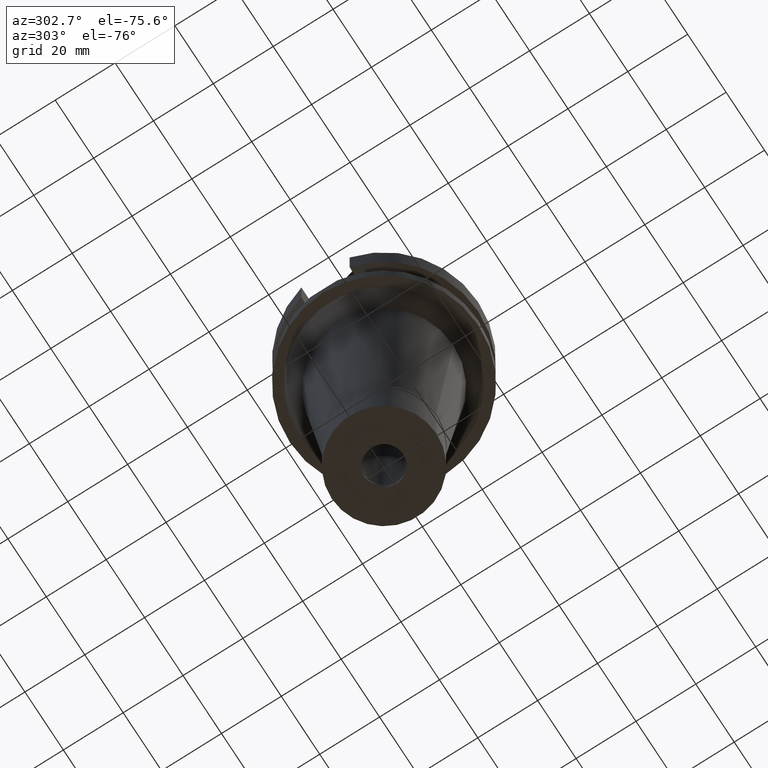
[diagram: clean part render]
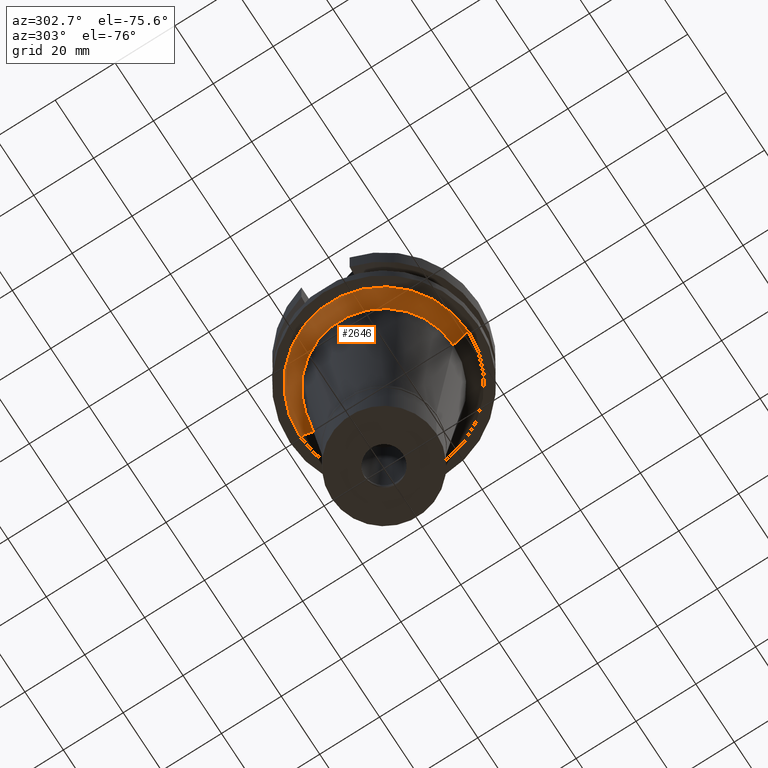
[diagram: same view with one face highlighted and labeled with its STEP entity id]
A machine part, auxiliary view. The second image highlights one B-rep face of the part: STEP entity #2646.
In plain terms, the highlighted conical surface has half-angle 45 deg.
Its self-contained STEP definition (entity closure, byte-faithful):
#20 = DIRECTION ( 'NONE',  ( 0.0000000000000000000, -0.7071067811867980391, -0.7071067811862969954 ) ) ;
#110 = CIRCLE ( 'NONE', #2939, 28.16051653012999978 ) ;
#240 = CARTESIAN_POINT ( 'NONE',  ( 0.0000000000000000000, 0.0000000000000000000, -27.00000000000000000 ) ) ;
#283 = FACE_OUTER_BOUND ( 'NONE', #2637, .T. ) ;
#458 = EDGE_CURVE ( 'NONE', #1438, #1538, #859, .T. ) ;
#709 = EDGE_CURVE ( 'NONE', #1438, #3122, #110, .T. ) ;
#791 = CARTESIAN_POINT ( 'NONE',  ( 0.0000000000000000000, 0.0000000000000000000, -32.00000000000000000 ) ) ;
#859 = LINE ( 'NONE', #1819, #3057 ) ;
#1003 = AXIS2_PLACEMENT_3D ( 'NONE', #791, #2215, #2511 ) ;
#1006 = AXIS2_PLACEMENT_3D ( 'NONE', #2021, #1993, #2669 ) ;
#1035 = ORIENTED_EDGE ( 'NONE', *, *, #2629, .T. ) ;
#1045 = CIRCLE ( 'NONE', #1003, 23.16051653012999623 ) ;
#1116 = VECTOR ( 'NONE', #20, 1000.000000000000000 ) ;
#1438 = VERTEX_POINT ( 'NONE', #1480 ) ;
#1480 = CARTESIAN_POINT ( 'NONE',  ( 0.0000000000000000000, -28.16051653012999978, -27.00000000000000000 ) ) ;
#1538 = VERTEX_POINT ( 'NONE', #2410 ) ;
#1626 = CARTESIAN_POINT ( 'NONE',  ( 0.0000000000000000000, 23.16051653012999623, -32.00000000000000000 ) ) ;
#1665 = DIRECTION ( 'NONE',  ( 0.0000000000000000000, 0.0000000000000000000, -1.000000000000000000 ) ) ;
#1684 = EDGE_CURVE ( 'NONE', #1538, #2951, #1045, .T. ) ;
#1752 = LINE ( 'NONE', #2949, #1116 ) ;
#1819 = CARTESIAN_POINT ( 'NONE',  ( 0.0000000000000000000, -28.16051653012999978, -27.00000000000000000 ) ) ;
#1825 = ORIENTED_EDGE ( 'NONE', *, *, #458, .F. ) ;
#1859 = ORIENTED_EDGE ( 'NONE', *, *, #709, .T. ) ;
#1993 = DIRECTION ( 'NONE',  ( 0.0000000000000000000, 0.0000000000000000000, 1.000000000000000000 ) ) ;
#2021 = CARTESIAN_POINT ( 'NONE',  ( 0.0000000000000000000, 0.0000000000000000000, -29.50000000000000000 ) ) ;
#2126 = CARTESIAN_POINT ( 'NONE',  ( 0.0000000000000000000, 28.16051653012999978, -27.00000000000000000 ) ) ;
#2215 = DIRECTION ( 'NONE',  ( 0.0000000000000000000, 0.0000000000000000000, -1.000000000000000000 ) ) ;
#2410 = CARTESIAN_POINT ( 'NONE',  ( 0.0000000000000000000, -23.16051653012999623, -32.00000000000000000 ) ) ;
#2511 = DIRECTION ( 'NONE',  ( 0.0000000000000000000, -1.000000000000000000, 0.0000000000000000000 ) ) ;
#2629 = EDGE_CURVE ( 'NONE', #3122, #2951, #1752, .T. ) ;
#2631 = CONICAL_SURFACE ( 'NONE', #1006, 25.66051653012999978, 0.7853981633972997312 ) ;
#2637 = EDGE_LOOP ( 'NONE', ( #3112, #1825, #1859, #1035 ) ) ;
#2646 = ADVANCED_FACE ( 'NONE', ( #283 ), #2631, .T. ) ;
#2669 = DIRECTION ( 'NONE',  ( 0.0000000000000000000, 1.000000000000000000, 0.0000000000000000000 ) ) ;
#2778 = DIRECTION ( 'NONE',  ( 0.0000000000000000000, 0.7071067811867980391, -0.7071067811862969954 ) ) ;
#2939 = AXIS2_PLACEMENT_3D ( 'NONE', #240, #1665, #3138 ) ;
#2949 = CARTESIAN_POINT ( 'NONE',  ( 0.0000000000000000000, 28.16051653012999978, -27.00000000000000000 ) ) ;
#2951 = VERTEX_POINT ( 'NONE', #1626 ) ;
#3057 = VECTOR ( 'NONE', #2778, 1000.000000000000000 ) ;
#3112 = ORIENTED_EDGE ( 'NONE', *, *, #1684, .F. ) ;
#3122 = VERTEX_POINT ( 'NONE', #2126 ) ;
#3138 = DIRECTION ( 'NONE',  ( 0.0000000000000000000, -1.000000000000000000, 0.0000000000000000000 ) ) ;